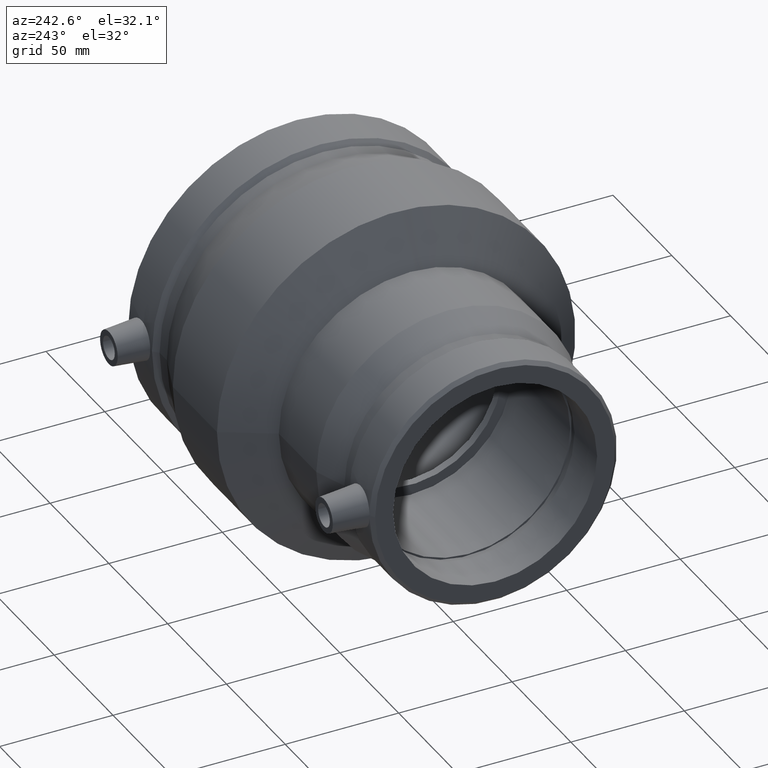
[diagram: clean part render]
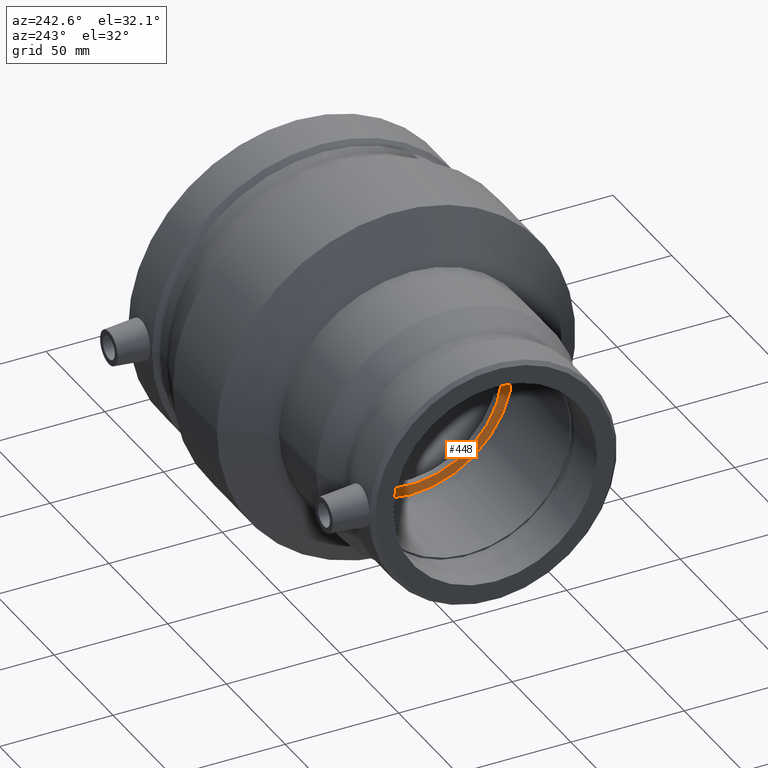
[diagram: same view with one face highlighted and labeled with its STEP entity id]
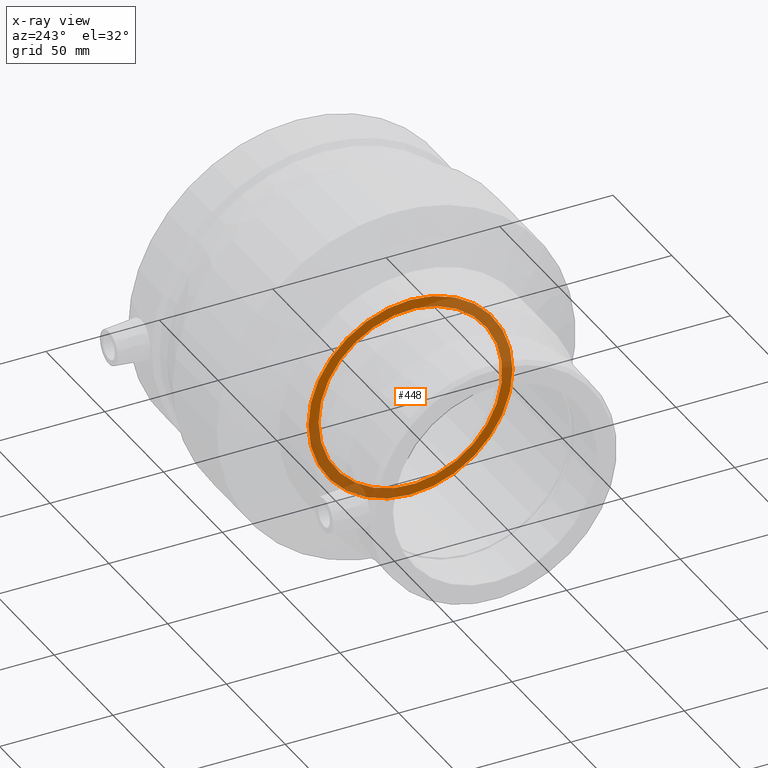
[diagram: x-ray of the same camera — body ghosted, the highlighted face saturated]
A machine part, auxiliary view. The second image highlights one B-rep face of the part: STEP entity #448.
The next image is the same camera in x-ray: the body ghosted, the highlighted face saturated — about 46% of this face is hidden behind the body in this view.
In plain terms, the highlighted planar face has unit normal (-1, 0, 0).
Its self-contained STEP definition (entity closure, byte-faithful):
#64=FACE_BOUND('',#190,.T.);
#118=FACE_OUTER_BOUND('',#189,.T.);
#189=EDGE_LOOP('',(#392));
#190=EDGE_LOOP('',(#393));
#231=CIRCLE('',#521,40.5);
#232=CIRCLE('',#523,45.);
#271=VERTEX_POINT('',#870);
#272=VERTEX_POINT('',#873);
#313=EDGE_CURVE('',#271,#271,#231,.T.);
#314=EDGE_CURVE('',#272,#272,#232,.T.);
#392=ORIENTED_EDGE('',*,*,#314,.F.);
#393=ORIENTED_EDGE('',*,*,#313,.T.);
#412=PLANE('',#522);
#448=ADVANCED_FACE('',(#118,#64),#412,.T.);
#521=AXIS2_PLACEMENT_3D('',#871,#665,#666);
#522=AXIS2_PLACEMENT_3D('',#872,#667,#668);
#523=AXIS2_PLACEMENT_3D('',#874,#669,#670);
#665=DIRECTION('center_axis',(1.,0.,0.));
#666=DIRECTION('ref_axis',(0.,0.,-1.));
#667=DIRECTION('center_axis',(-1.,0.,0.));
#668=DIRECTION('ref_axis',(0.,0.,1.));
#669=DIRECTION('center_axis',(1.,0.,0.));
#670=DIRECTION('ref_axis',(0.,0.,-1.));
#870=CARTESIAN_POINT('',(-13.5,40.5,0.));
#871=CARTESIAN_POINT('Origin',(-13.5,0.,0.));
#872=CARTESIAN_POINT('Origin',(-13.5,45.,0.));
#873=CARTESIAN_POINT('',(-13.5,45.,0.));
#874=CARTESIAN_POINT('Origin',(-13.5,0.,0.));